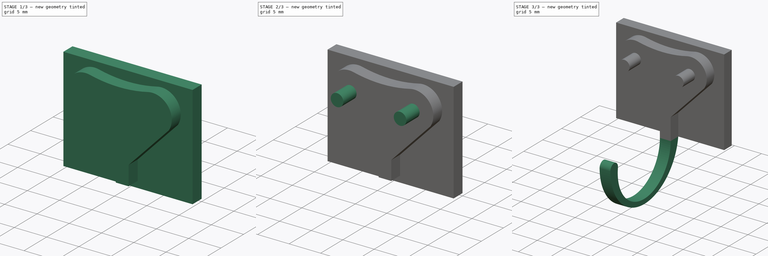
[diagram: build sequence overview — one tinted view per stage of 3, left to right]
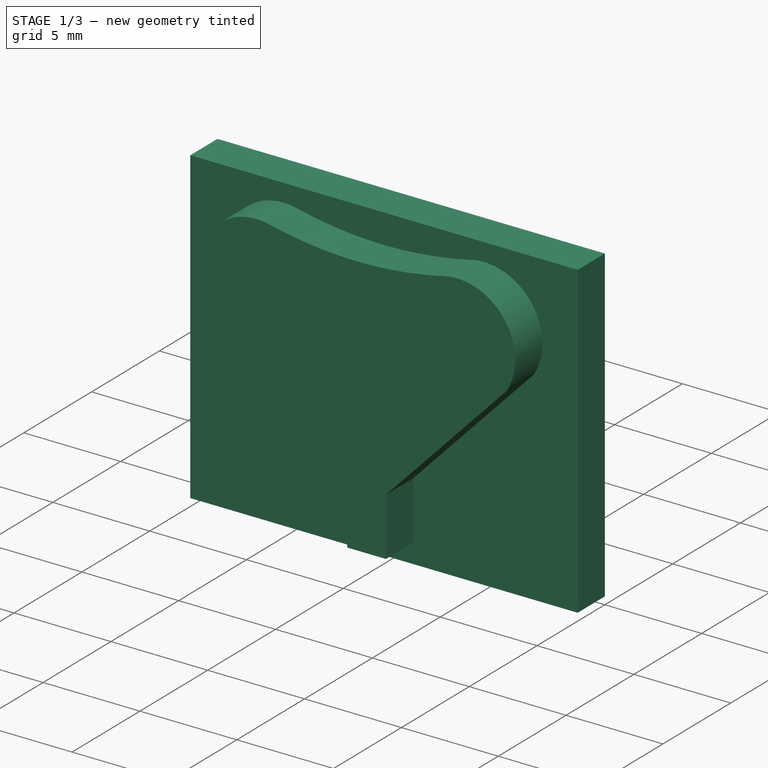
[diagram: stage 1 of 3 — iso view after this stage's code; geometry added in this stage tinted green]
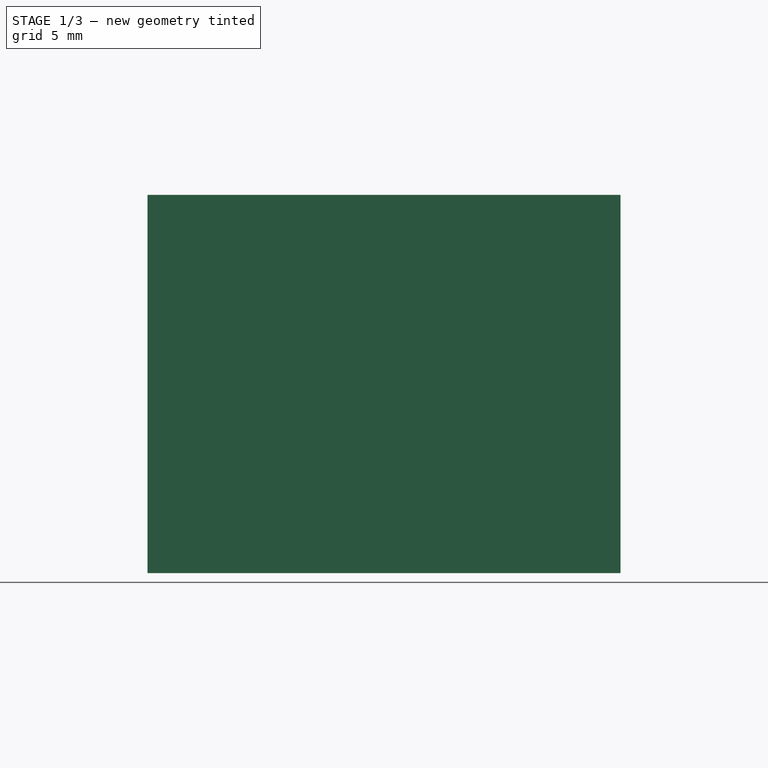
[diagram: stage 1 of 3 — front view after this stage's code; geometry added in this stage tinted green]
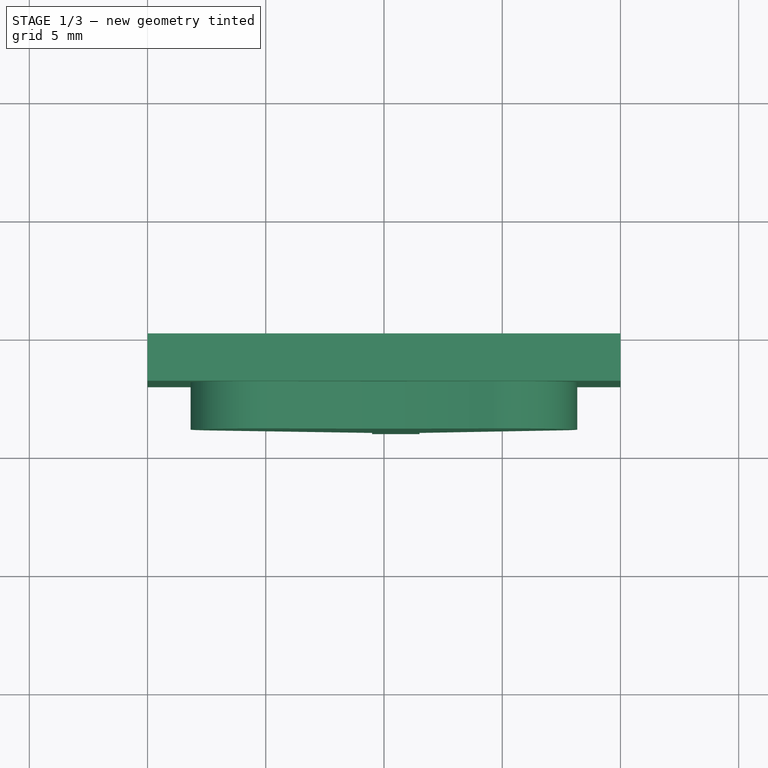
[diagram: stage 1 of 3 — top view after this stage's code; geometry added in this stage tinted green]
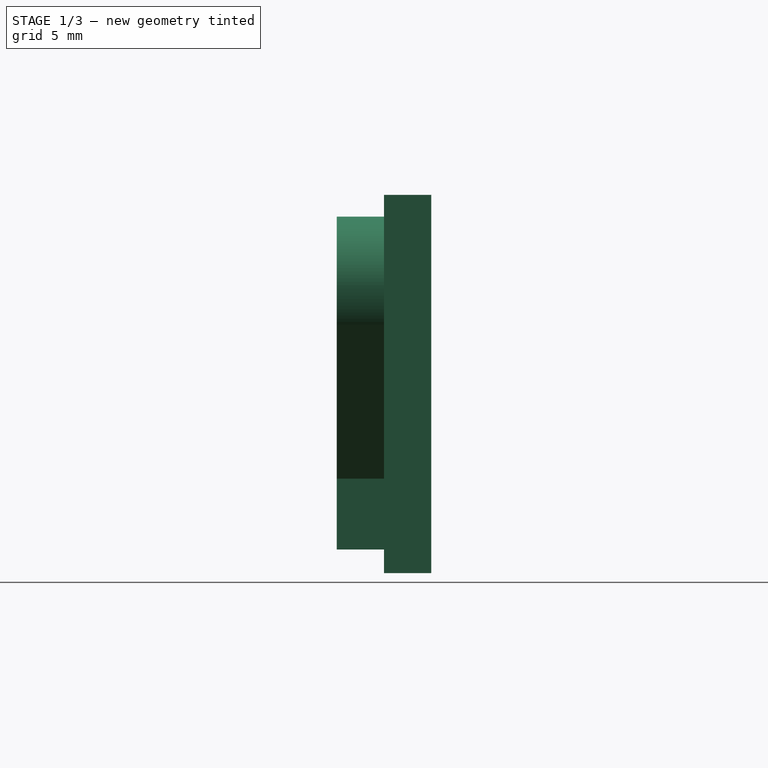
[diagram: stage 1 of 3 — right view after this stage's code; geometry added in this stage tinted green]
FCSTD DOCUMENT  (FreeCAD 1.0R39285 (Git))
Label: worksheet_exe.2
License: All rights reserved
LicenseURL: https://en.wikipedia.org/wiki/All_rights_reserved
objects: Sketcher::SketchObject×7, PartDesign::Pad×5, Part::FeaturePython×1, PartDesign::SubShapeBinder×1, PartDesign::Body×1
note: 32 computed .brp shape members not serialized (recipe doc carries the construction recipe); baked Part::Feature solids carry a one-line shape summary decoded from their .brp

FEATURE [Sketcher::SketchObject] Sketch
  ArcFitTolerance = 1e-06
  AttachmentSupport = -> [XZ_Plane]
  FullyConstrained = true
  MakeInternals = false
  MapMode = 5
  Placement = pos=(0,0,0) rot=(1,0,0;1.5708rad)
  sketch-geometry (4):
    g0: LineSegment StartX=0 StartY=0 StartZ=0 EndX=20 EndY=0 EndZ=0
    g1: LineSegment StartX=20 StartY=0 StartZ=0 EndX=20 EndY=16 EndZ=0
    g2: LineSegment StartX=20 StartY=16 StartZ=0 EndX=0 EndY=16 EndZ=0
    g3: LineSegment StartX=0 StartY=16 StartZ=0 EndX=0 EndY=0 EndZ=0
  constraints (11):
    c: Coincident(g0,g1)
    c: Coincident(g1,g2)
    c: Coincident(g2,g3)
    c: Coincident(g3,g0)
    c: Horizontal(g0)
    c: Horizontal(g2)
    c: Vertical(g1)
    c: Vertical(g3)
    c: Distance(g1,g3) = 20
    c: Distance(g0,g2) = 16
    c: Coincident(g0,g-1)
FEATURE [PartDesign::Pad] Pad
  Direction = (0,-1,2e-16)
  Length = 2
  Length2 = 10
  Placement = pos=(0,0,0) rot=(1,0,0;1.5708rad)
  Profile = -> Sketch
  ReferenceAxis = -> Sketch [N_Axis]
  Refine = true
  Suppressed = false
  Type = 0
FEATURE [Sketcher::SketchObject] Sketch001
  ArcFitTolerance = 1e-06
  AttachmentSupport = -> [Pad]
  FullyConstrained = true
  MakeInternals = false
  MapMode = 5
  Placement = pos=(0,-2,0) rot=(1,0,0;1.5708rad)
  sketch-geometry (8):
    g0: ArcOfCircle CenterX=15.1728 CenterY=12.0769 CenterZ=0 NormalX=0 NormalY=0 NormalZ=1 AngleXU=0 Radius=3 StartAngle=5.72972 EndAngle=8.08092
    g1: ArcOfCircle CenterX=9.99783 CenterY=34.4872 CenterZ=0 NormalX=0 NormalY=0 NormalZ=1 AngleXU=0 Radius=20 StartAngle=4.48545 EndAngle=4.93933
    g2: ArcOfCircle CenterX=4.82283 CenterY=12.0769 CenterZ=0 NormalX=0 NormalY=0 NormalZ=1 AngleXU=0 Radius=3 StartAngle=1.34385 EndAngle=3.93974
    g3: LineSegment StartX=9.5 StartY=4 StartZ=0 EndX=9.5 EndY=1 EndZ=0
    g4: LineSegment StartX=9.5 StartY=1 StartZ=0 EndX=11.5 EndY=1 EndZ=0
    g5: LineSegment StartX=11.5 StartY=1 StartZ=0 EndX=11.5 EndY=4 EndZ=0
    g6: LineSegment StartX=11.5 StartY=4 StartZ=0 EndX=17.7249 EndY=10.5 EndZ=0
    g7: LineSegment StartX=9.5 StartY=4 StartZ=0 EndX=2.72873 EndY=9.92873 EndZ=0
  constraints (25):
    c: Tangent(g0,g1) = 1.5708
    c: Tangent(g1,g2) = 1.5708
    c: Radius(g1) = 20
    c: Radius(g0) = 3
    c: Vertical(g3)
    c: Coincident(g3,g4)
    c: Horizontal(g4)
    c: Coincident(g4,g5)
    c: Vertical(g5)
    c: Coincident(g6,g5)
    c: Coincident(g6,g0)
    c: Coincident(g7,g3)
    c: Coincident(g7,g2)
    c: Equal(g3,g5)
    c: Equal(g7,g6)
    c: Equal(g2,g0)
    c: Distance(g4,g4) = 2
    c: Distance(g3,g-1) = 1
    c: DistanceX(g-1,g3) = 9.5
    c: DistanceY(g3,g3) = 3
    c: Distance(g2,g3) = 9
    c: DistanceY(g-1,g1) = 15
    c: DistanceX(g1,g0) = 9
    c: DistanceY(g-1,g0) = 15
    c: DistanceY(g-1,g0) = 10.5
FEATURE [PartDesign::Pad] Pad001
  BaseFeature = -> Pad
  Direction = (0,-1,2e-16)
  Length = 2
  Length2 = 10
  Placement = pos=(0,0,0) rot=(1,0,0;1.5708rad)
  Profile = -> Sketch001
  ReferenceAxis = -> Sketch001 [N_Axis]
  Refine = true
  Suppressed = false
  Type = 0
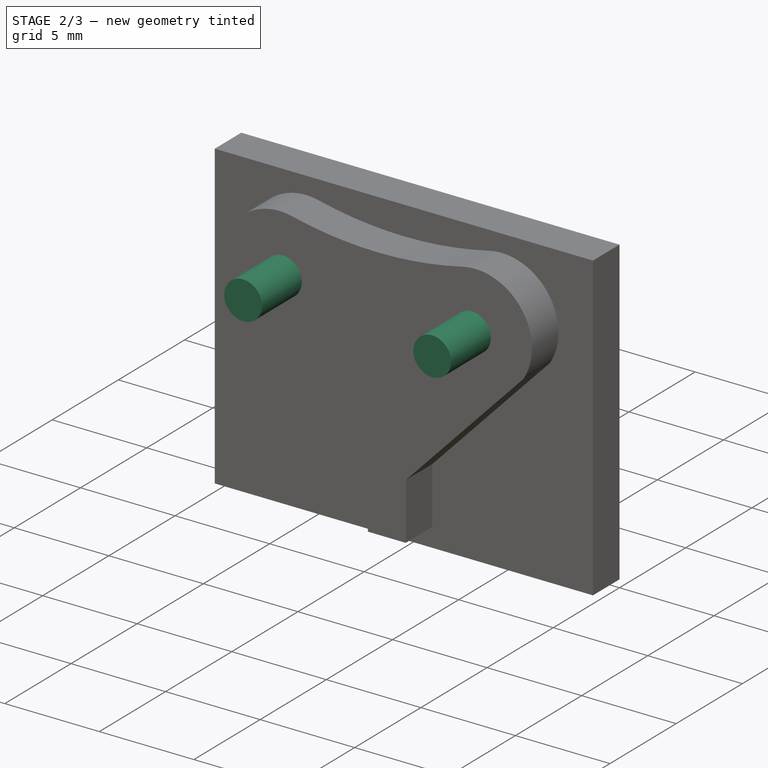
[diagram: stage 2 of 3 — iso view after this stage's code; geometry added in this stage tinted green]
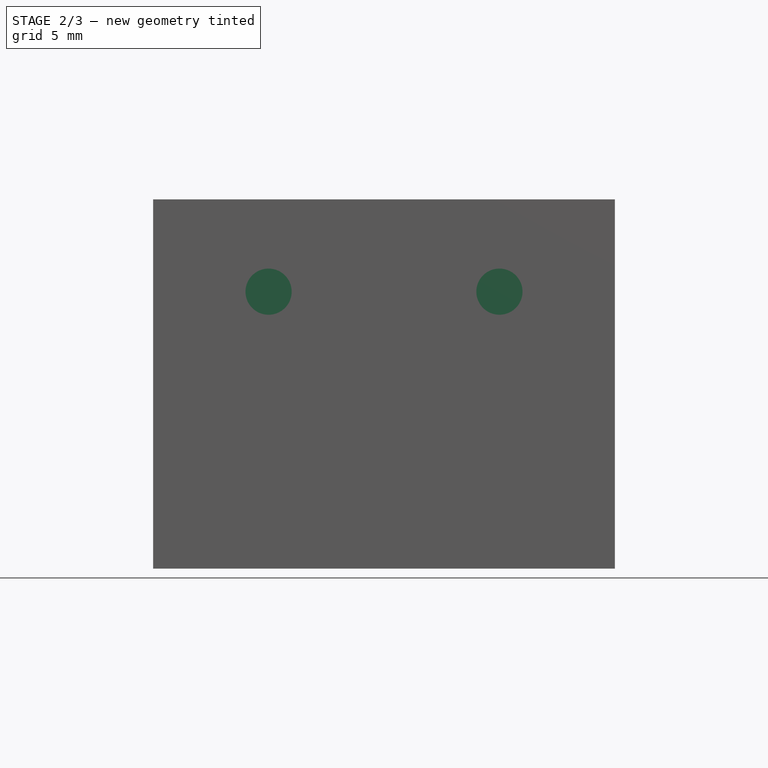
[diagram: stage 2 of 3 — front view after this stage's code; geometry added in this stage tinted green]
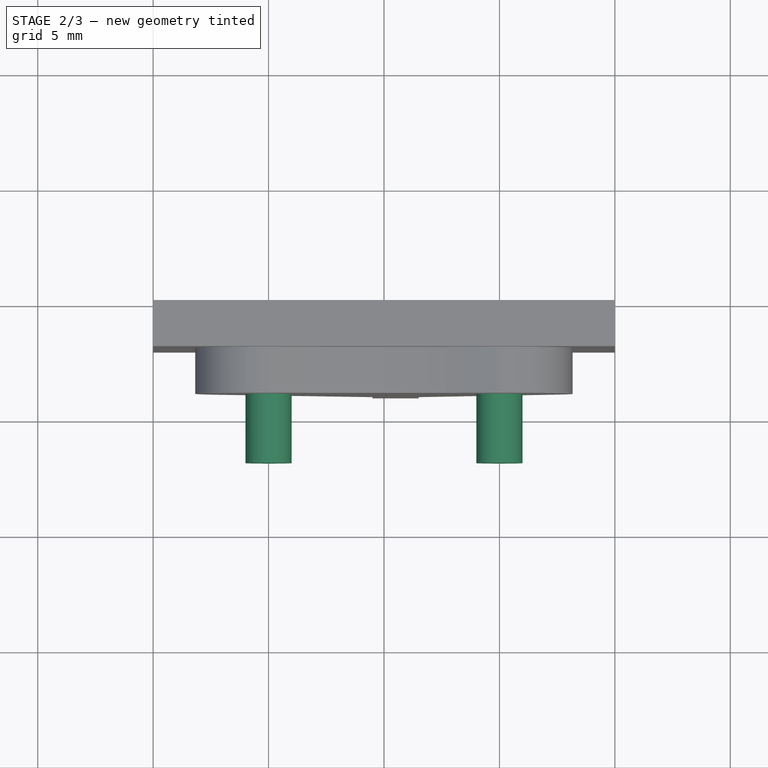
[diagram: stage 2 of 3 — top view after this stage's code; geometry added in this stage tinted green]
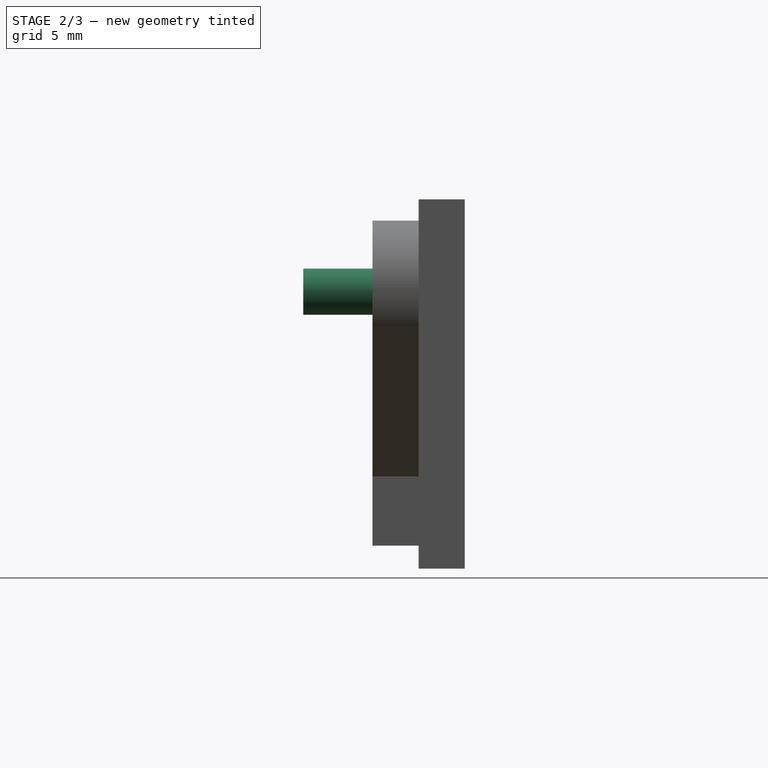
[diagram: stage 2 of 3 — right view after this stage's code; geometry added in this stage tinted green]
FEATURE [Sketcher::SketchObject] Sketch002  label="side_view"
  ArcFitTolerance = 1e-06
  AttachmentSupport = -> [Pad001]
  ExternalGeometry = -> [Pad001]
  FullyConstrained = true
  MakeInternals = false
  MapMode = 5
  Placement = pos=(9.5,0,0) rot=(0.707107,0,-0.707107;3.14159rad)
  sketch-geometry (7):
    g0: LineSegment StartX=-1 StartY=2 StartZ=0 EndX=-1.7e-15 EndY=2 EndZ=0
    g1: LineSegment StartX=-1.7e-15 StartY=2 StartZ=0 EndX=-1.3e-15 EndY=4 EndZ=0
    g2: LineSegment StartX=-1 StartY=4 StartZ=0 EndX=-1.3e-15 EndY=4 EndZ=0
    g3: ArcOfCircle CenterX=0 CenterY=11 CenterZ=0 NormalX=0 NormalY=0 NormalZ=1 AngleXU=0 Radius=7 StartAngle=4.71239 EndAngle=7.96532
    g4: ArcOfCircle CenterX=-0.888889 CenterY=18.9505 CenterZ=0 NormalX=0 NormalY=0 NormalZ=1 AngleXU=0 Radius=1 StartAngle=1.68214 EndAngle=4.82373
    g5: ArcOfCircle CenterX=0 CenterY=11 CenterZ=0 NormalX=0 NormalY=0 NormalZ=1 AngleXU=0 Radius=9 StartAngle=4.71239 EndAngle=7.96532
    g6: LineSegment StartX=-1 StartY=4 StartZ=0 EndX=-1 EndY=2 EndZ=0
  constraints (19):
    c: Coincident(g0,g-4)
    c: PointOnObject(g0,g-2)
    c: Horizontal(g0)
    c: Distance(g1) = 2
    c: Coincident(g1,g0)
    c: PointOnObject(g1,g-2)
    c: Coincident(g2,g-6)
    c: Coincident(g2,g1)
    c: PointOnObject(g3,g-2)
    c: Coincident(g3,g1)
    c: Tangent(g3,g4) = 1.5708
    c: Tangent(g4,g5) = -1.5708
    c: Coincident(g5,g0)
    c: Radius(g5) = 9
    c: Radius(g4) = 1
    c: DistanceX(g3,g5) = 0
    c: DistanceX(g4,g-1) = 1
    c: Coincident(g6,g2)
    c: Coincident(g6,g0)
FEATURE [Sketcher::SketchObject] Sketch003  label="bottom_view"
  ArcFitTolerance = 1e-06
  AttachmentSupport = -> [XY_Plane]
  ExternalGeometry = -> [Pad001,Sketch002]
  FullyConstrained = true
  MakeInternals = false
  MapMode = 5
  sketch-geometry (11):
    g0: LineSegment StartX=9.5 StartY=-20 StartZ=0 EndX=11.5 EndY=-20 EndZ=0
    g1: LineSegment StartX=11.5 StartY=-20 StartZ=0 EndX=11.5 EndY=-4 EndZ=0
    g2: LineSegment StartX=9.5 StartY=-4 StartZ=0 EndX=11.5 EndY=-4 EndZ=0
    g3: LineSegment StartX=9.5 StartY=-4 StartZ=0 EndX=9.5 EndY=-20 EndZ=0
    g4: LineSegment StartX=9.5 StartY=-2 StartZ=0 EndX=9.5 EndY=-4 EndZ=0
    g5: LineSegment StartX=9.5 StartY=-2 StartZ=0 EndX=11.5 EndY=-2 EndZ=0
    g6: LineSegment StartX=11.5 StartY=-4 StartZ=0 EndX=11.5 EndY=-2 EndZ=0
    g7: LineSegment StartX=9.5 StartY=-17.9505 StartZ=0 EndX=9.5 EndY=-20 EndZ=0
    g8: LineSegment StartX=9.5 StartY=-20 StartZ=0 EndX=11.5 EndY=-20 EndZ=0
    g9: LineSegment StartX=11.5 StartY=-20 StartZ=0 EndX=11.5 EndY=-17.9505 EndZ=0
    g10: LineSegment StartX=11.5 StartY=-17.9505 StartZ=0 EndX=9.5 EndY=-17.9505 EndZ=0
  constraints (25):
    c: Distance(g0) = 2
    c: Coincident(g0,g-6)
    c: Horizontal(g0)
    c: Coincident(g1,g0)
    c: Coincident(g1,g-4)
    c: Coincident(g2,g-3)
    c: Coincident(g2,g1)
    c: Coincident(g3,g2)
    c: Coincident(g3,g0)
    c: Coincident(g4,g-6)
    c: Coincident(g4,g2)
    c: Coincident(g5,g4)
    c: Coincident(g5,g-4)
    c: Coincident(g6,g1)
    c: Coincident(g6,g5)
    c: Coincident(g7,g8)
    c: Coincident(g8,g9)
    c: Coincident(g9,g10)
    c: Coincident(g10,g7)
    c: Vertical(g7)
    c: Vertical(g9)
    c: Horizontal(g8)
    c: Horizontal(g10)
    c: Coincident(g7,g-7)
    c: Coincident(g8,g0)
FEATURE [Part::FeaturePython] Mixed_curve  # WARN: FeaturePython — macro-defined, semantics opaque (R4)
  Active = false
  ApproxTolerance = 0.001
  Continuity = 5
  DegreeMax = 5
  DegreeMin = 3
  Direction1 = (0,0,0)
  Direction2 = (0,0,0)
  FillFace1 = false
  FillFace2 = false
  Parametrization = 0
  Samples = 100
  Shape1 = -> Sketch002
  Shape2 = -> Sketch003
FEATURE [PartDesign::SubShapeBinder] Binder
  BindCopyOnChange = 0
  BindMode = 0
  ClaimChildren = false
  Context = -> Body [Binder.]
  Fuse = false
  MakeFace = true
  OffsetFill = false
  OffsetIntersection = false
  OffsetJoinType = 0
  OffsetOpenResult = false
  PartialLoad = false
  Refine = true
  Relative = true
  Support = -> [Mixed_curve]
  _Version = 2
FEATURE [Sketcher::SketchObject] Sketch004
  ArcFitTolerance = 1e-06
  AttachmentSupport = -> [Pad001]
  ExternalGeometry = -> [Pad001]
  FullyConstrained = true
  MakeInternals = false
  MapMode = 5
  Placement = pos=(0,-4,9e-16) rot=(1,0,0;1.5708rad)
  sketch-geometry (2):
    g0: Circle CenterX=5 CenterY=12 CenterZ=0 NormalX=0 NormalY=0 NormalZ=1 AngleXU=0 Radius=1
    g1: Circle CenterX=15 CenterY=12 CenterZ=0 NormalX=0 NormalY=0 NormalZ=1 AngleXU=0 Radius=1
  constraints (6):
    c: Diameter(g0) = 2
    c: DistanceY(g0,g-3) = 4
    c: DistanceX(g-1,g0) = 5
    c: Equal(g0,g1)
    c: DistanceX(g1,g-4) = 5
    c: DistanceY(g1,g-4) = 4
FEATURE [PartDesign::Pad] Pad002
  BaseFeature = -> Pad001
  Direction = (0,-1,2e-16)
  Length = 3
  Length2 = 10
  Placement = pos=(0,0,0) rot=(1,0,0;1.5708rad)
  Profile = -> Sketch004
  ReferenceAxis = -> Sketch004 [N_Axis]
  Refine = true
  Suppressed = false
  Type = 0
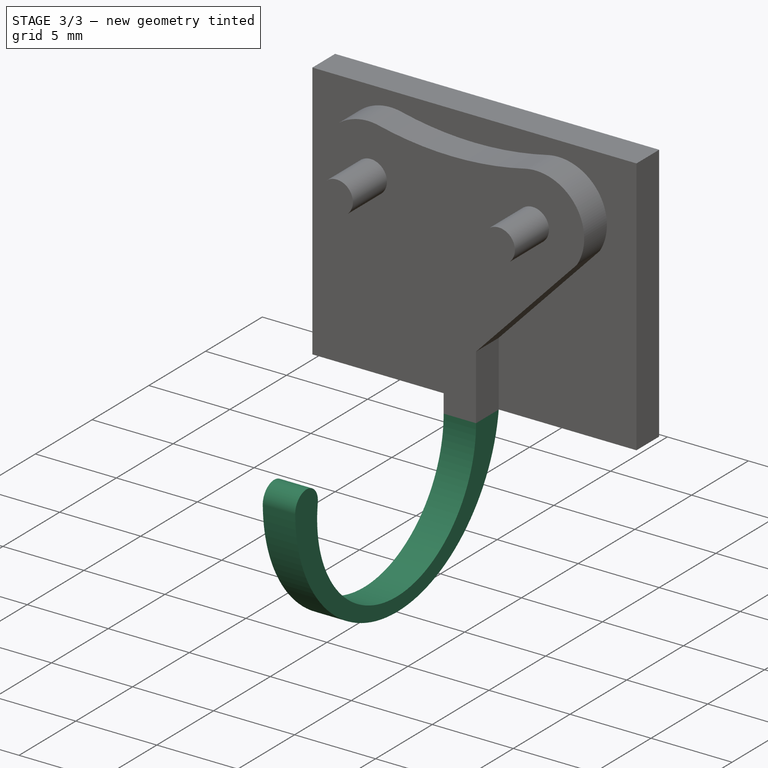
[diagram: stage 3 of 3 — iso view after this stage's code; geometry added in this stage tinted green]
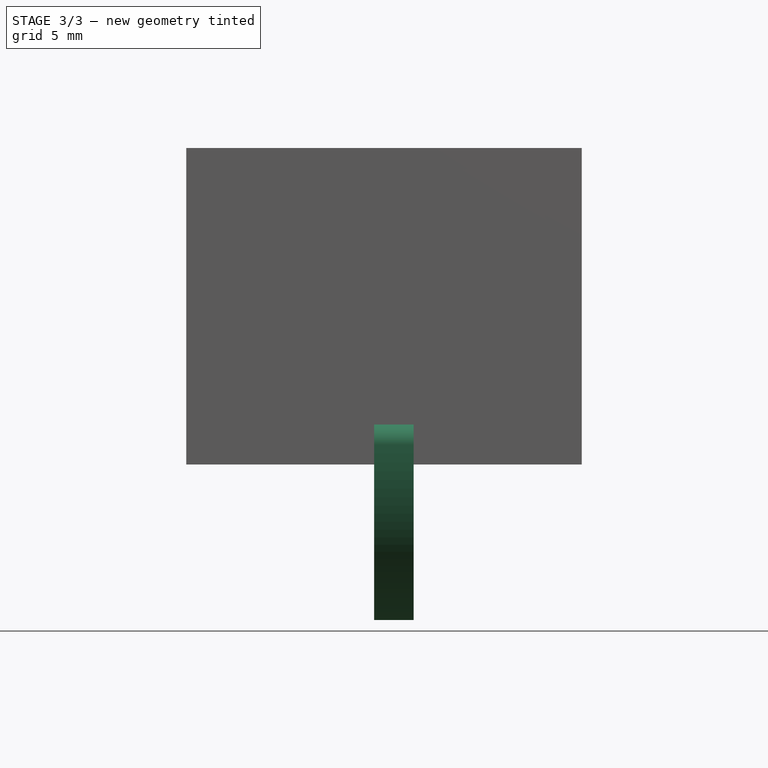
[diagram: stage 3 of 3 — front view after this stage's code; geometry added in this stage tinted green]
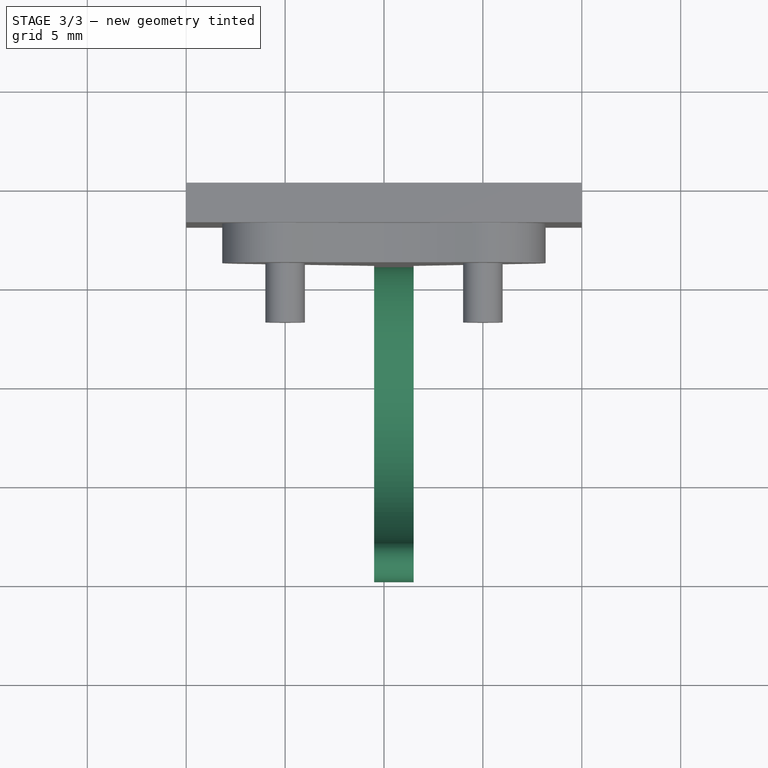
[diagram: stage 3 of 3 — top view after this stage's code; geometry added in this stage tinted green]
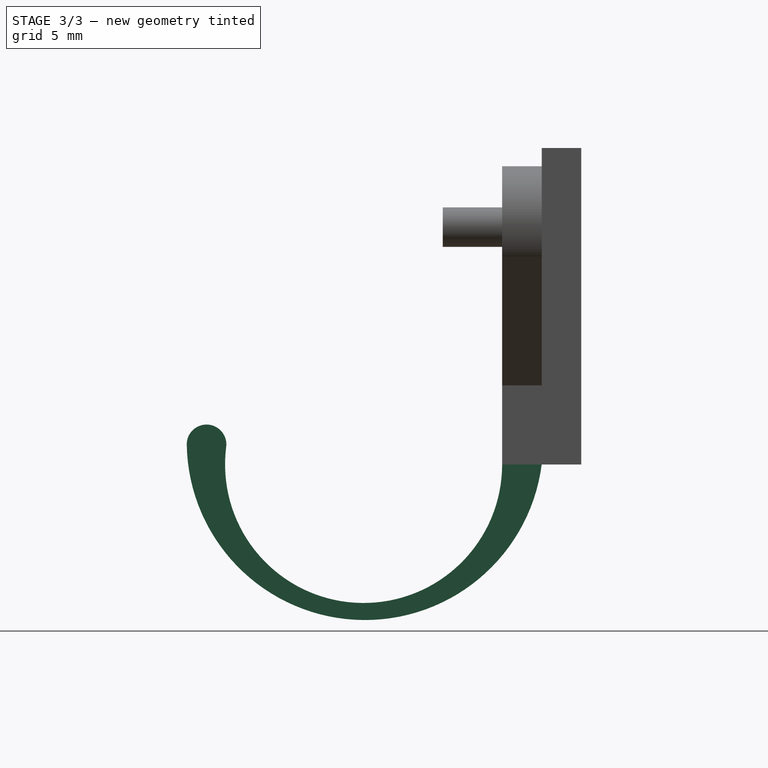
[diagram: stage 3 of 3 — right view after this stage's code; geometry added in this stage tinted green]
FEATURE [Sketcher::SketchObject] Sketch005
  ArcFitTolerance = 1e-06
  AttachmentSupport = -> [Pad002]
  ExternalGeometry = -> [Pad002,Binder]
  FullyConstrained = true
  MakeInternals = false
  MapMode = 5
  Placement = pos=(0,-2,0) rot=(1,0,0;1.5708rad)
  sketch-geometry (4):
    g0: LineSegment StartX=9.5 StartY=1 StartZ=0 EndX=9.5 EndY=0 EndZ=0
    g1: LineSegment StartX=9.5 StartY=0 StartZ=0 EndX=11.5 EndY=0 EndZ=0
    g2: LineSegment StartX=11.5 StartY=0 StartZ=0 EndX=11.5 EndY=1 EndZ=0
    g3: LineSegment StartX=11.5 StartY=1 StartZ=0 EndX=9.5 EndY=1 EndZ=0
  constraints (10):
    c: Coincident(g0,g1)
    c: Coincident(g1,g2)
    c: Coincident(g2,g3)
    c: Coincident(g3,g0)
    c: Vertical(g0)
    c: Vertical(g2)
    c: Horizontal(g1)
    c: Horizontal(g3)
    c: Coincident(g0,g-3)
    c: Coincident(g1,g-5)
FEATURE [PartDesign::Pad] Pad003
  BaseFeature = -> Pad002
  Direction = (0,-1,2e-16)
  Length = 2
  Length2 = 10
  Placement = pos=(0,0,0) rot=(1,0,0;1.5708rad)
  Profile = -> Sketch005
  ReferenceAxis = -> Sketch005 [N_Axis]
  Refine = true
  Suppressed = false
  Type = 0
FEATURE [Sketcher::SketchObject] Sketch006
  ArcFitTolerance = 1e-06
  AttachmentSupport = -> [Pad003]
  ExternalGeometry = -> [Binder,Pad003]
  FullyConstrained = true
  MakeInternals = false
  MapMode = 5
  Placement = pos=(9.5,0,-6.6e-15) rot=(0.707107,0,-0.707107;3.14159rad)
  sketch-geometry (4):
    g0: LineSegment StartX=9.3e-15 StartY=2 StartZ=0 EndX=-1.19209e-07 EndY=4 EndZ=0
    g1: ArcOfCircle CenterX=-5.36654e-07 CenterY=11.0036 CenterZ=0 NormalX=0 NormalY=0 NormalZ=1 AngleXU=0 Radius=7.00355 StartAngle=4.71239 EndAngle=7.98124
    g2: ArcOfCircle CenterX=-1.01594 CenterY=18.9434 CenterZ=0 NormalX=0 NormalY=0 NormalZ=1 AngleXU=0 Radius=1.00102 StartAngle=1.55487 EndAngle=4.83965
    g3: ArcOfCircle CenterX=-1.14344 CenterY=10.9363 CenterZ=0 NormalX=0 NormalY=0 NormalZ=1 AngleXU=0 Radius=9.00914 StartAngle=4.83965 EndAngle=7.83806
  constraints (8):
    c: Coincident(g0,g-4)
    c: Coincident(g0,g-3)
    c: Perpendicular(g0,g1) = 4.71239
    c: Coincident(g1,g-5)
    c: Tangent(g1,g2) = 1.5708
    c: Coincident(g2,g-6)
    c: Tangent(g2,g3) = -1.5708
    c: Coincident(g3,g0)
FEATURE [PartDesign::Pad] Pad004
  BaseFeature = -> Pad003
  Direction = (-1,0,-2e-16)
  Length = 2
  Length2 = 10
  Placement = pos=(0,0,0) rot=(1,0,0;1.5708rad)
  Profile = -> Sketch006
  ReferenceAxis = -> Sketch006 [N_Axis]
  Refine = true
  Reversed = true
  Suppressed = false
  Type = 0
FEATURE [PartDesign::Body] Body
  AllowCompound = false
  Group = -> [Sketch,Pad,Sketch001,Pad001,Sketch002,Sketch003,Binder,Sketch004,Pad002,Sketch005,Pad003,Sketch006,Pad004]
  Origin = -> Origin
  Tip = -> Pad004
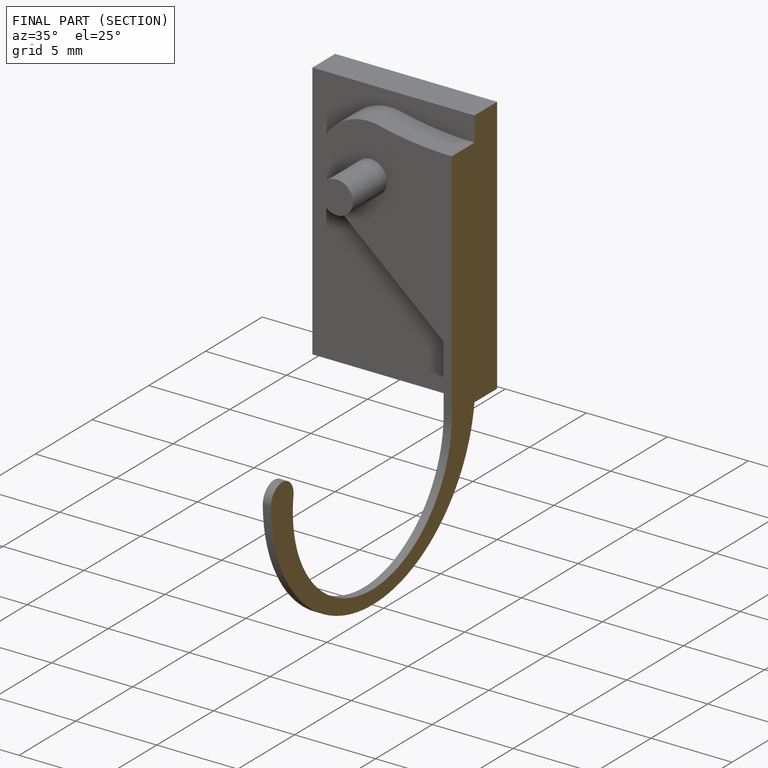
[diagram: finished part — half-section view (interior)]
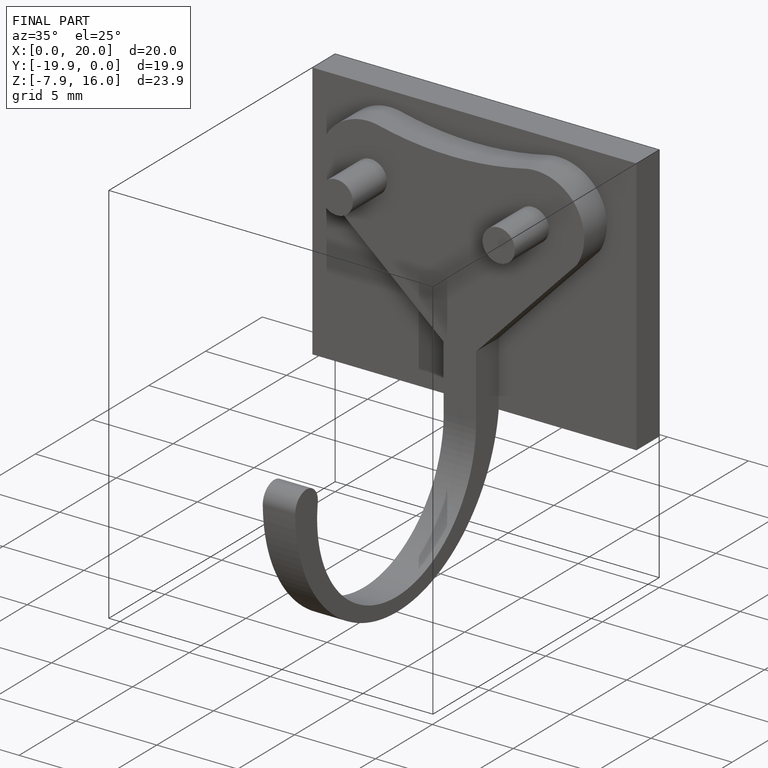
[diagram: finished part — iso view with bounding-box wireframe]
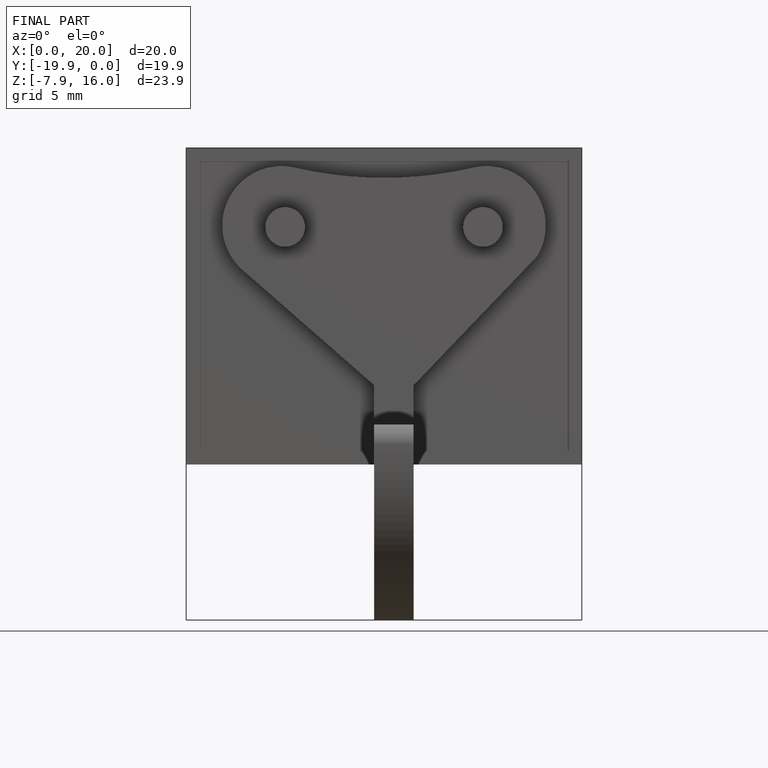
[diagram: finished part — front view with bounding-box wireframe]
